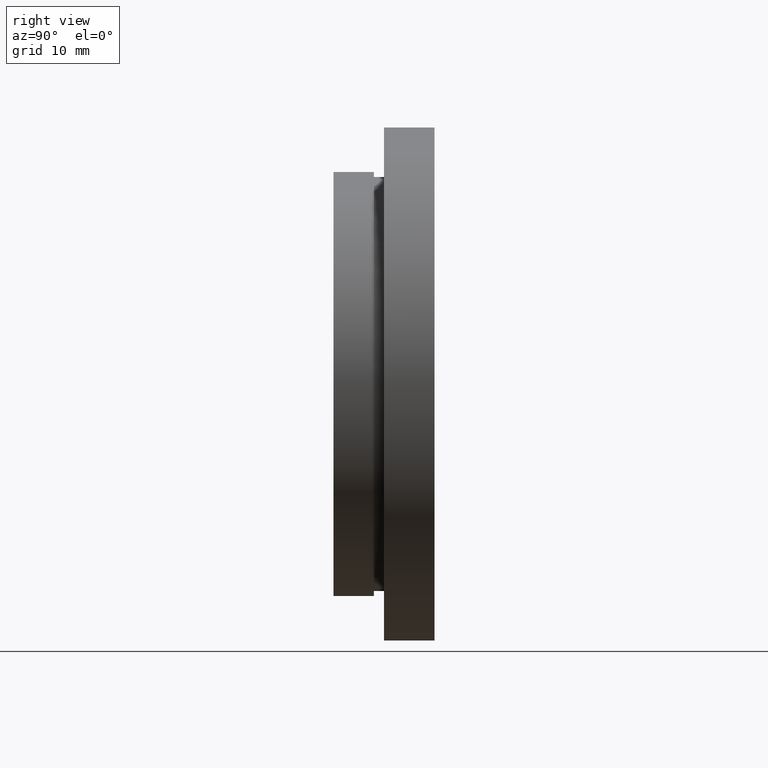
[diagram: clean part render]
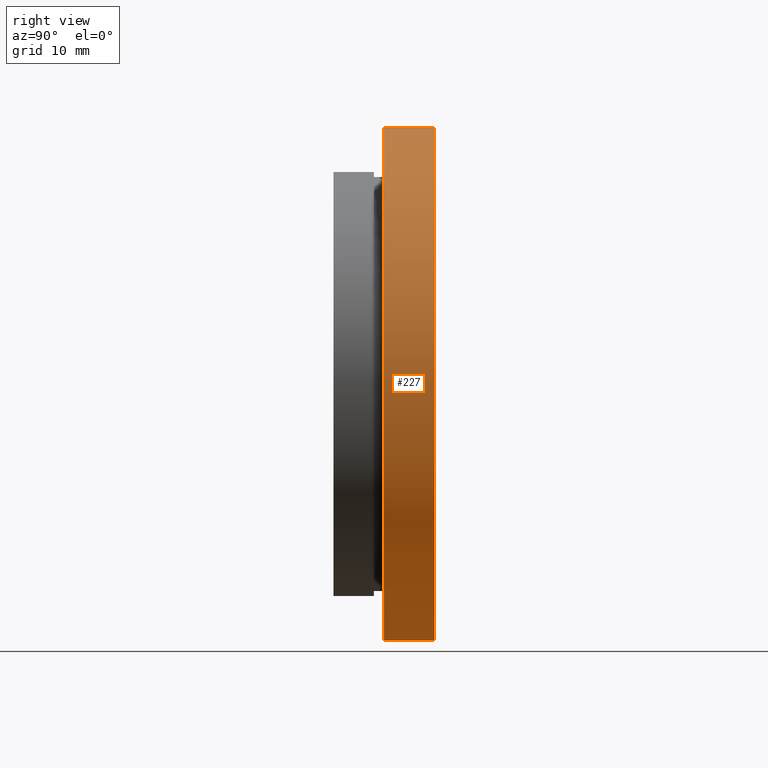
[diagram: same view with one face highlighted and labeled with its STEP entity id]
A machine part, right view. The second image highlights one B-rep face of the part: STEP entity #227.
In plain terms, the highlighted cylindrical surface (partial cylindrical patch) has radius 25.4 mm, axis along (-0, 1, -0).
Its self-contained STEP definition (entity closure, byte-faithful):
#17 = LINE ( 'NONE', #277, #457 ) ;
#46 = ORIENTED_EDGE ( 'NONE', *, *, #525, .F. ) ;
#94 = EDGE_CURVE ( 'NONE', #386, #469, #17, .T. ) ;
#98 = VERTEX_POINT ( 'NONE', #273 ) ;
#100 = CARTESIAN_POINT ( 'NONE',  ( 0.0000000000000000000, 17.41929831819392000, 0.0000000000000000000 ) ) ;
#131 = CIRCLE ( 'NONE', #442, 25.39999999999999900 ) ;
#140 = DIRECTION ( 'NONE',  ( -0.0000000000000000000, 1.000000000000000000, -0.0000000000000000000 ) ) ;
#164 = DIRECTION ( 'NONE',  ( 0.0000000000000000000, 0.0000000000000000000, 1.000000000000000000 ) ) ;
#171 = CARTESIAN_POINT ( 'NONE',  ( 0.0000000000000000000, 5.000000000000000900, 25.39999999999999900 ) ) ;
#183 = CARTESIAN_POINT ( 'NONE',  ( 0.0000000000000000000, 10.00000000000000000, 25.39999999999999900 ) ) ;
#200 = ORIENTED_EDGE ( 'NONE', *, *, #94, .F. ) ;
#227 = ADVANCED_FACE ( 'NONE', ( #278 ), #543, .T. ) ;
#265 = EDGE_LOOP ( 'NONE', ( #544, #425, #46, #200 ) ) ;
#273 = CARTESIAN_POINT ( 'NONE',  ( 3.110602869834276900E-015, 10.00000000000000000, -25.39999999999999900 ) ) ;
#277 = CARTESIAN_POINT ( 'NONE',  ( 0.0000000000000000000, 17.41929831819392000, 25.39999999999999900 ) ) ;
#278 = FACE_OUTER_BOUND ( 'NONE', #265, .T. ) ;
#294 = VERTEX_POINT ( 'NONE', #489 ) ;
#333 = AXIS2_PLACEMENT_3D ( 'NONE', #100, #349, #539 ) ;
#349 = DIRECTION ( 'NONE',  ( -0.0000000000000000000, 1.000000000000000000, -0.0000000000000000000 ) ) ;
#355 = DIRECTION ( 'NONE',  ( -0.0000000000000000000, 1.000000000000000000, -0.0000000000000000000 ) ) ;
#381 = VECTOR ( 'NONE', #558, 1000.000000000000000 ) ;
#386 = VERTEX_POINT ( 'NONE', #171 ) ;
#396 = EDGE_CURVE ( 'NONE', #294, #98, #617, .T. ) ;
#407 = CARTESIAN_POINT ( 'NONE',  ( 0.0000000000000000000, 10.00000000000000000, 0.0000000000000000000 ) ) ;
#415 = DIRECTION ( 'NONE',  ( 0.0000000000000000000, 0.0000000000000000000, 1.000000000000000000 ) ) ;
#425 = ORIENTED_EDGE ( 'NONE', *, *, #396, .T. ) ;
#442 = AXIS2_PLACEMENT_3D ( 'NONE', #407, #140, #164 ) ;
#455 = CARTESIAN_POINT ( 'NONE',  ( 0.0000000000000000000, 5.000000000000000900, 0.0000000000000000000 ) ) ;
#457 = VECTOR ( 'NONE', #355, 1000.000000000000000 ) ;
#469 = VERTEX_POINT ( 'NONE', #183 ) ;
#489 = CARTESIAN_POINT ( 'NONE',  ( 3.110602869834276900E-015, 5.000000000000000900, -25.39999999999999900 ) ) ;
#490 = EDGE_CURVE ( 'NONE', #386, #294, #590, .T. ) ;
#501 = CARTESIAN_POINT ( 'NONE',  ( 3.110602869834276900E-015, 17.41929831819392000, -25.39999999999999900 ) ) ;
#525 = EDGE_CURVE ( 'NONE', #469, #98, #131, .T. ) ;
#539 = DIRECTION ( 'NONE',  ( 0.0000000000000000000, 0.0000000000000000000, 1.000000000000000000 ) ) ;
#543 = CYLINDRICAL_SURFACE ( 'NONE', #333, 25.39999999999999900 ) ;
#544 = ORIENTED_EDGE ( 'NONE', *, *, #490, .T. ) ;
#545 = AXIS2_PLACEMENT_3D ( 'NONE', #455, #548, #415 ) ;
#548 = DIRECTION ( 'NONE',  ( -0.0000000000000000000, 1.000000000000000000, -0.0000000000000000000 ) ) ;
#558 = DIRECTION ( 'NONE',  ( -0.0000000000000000000, 1.000000000000000000, -0.0000000000000000000 ) ) ;
#590 = CIRCLE ( 'NONE', #545, 25.39999999999999900 ) ;
#617 = LINE ( 'NONE', #501, #381 ) ;